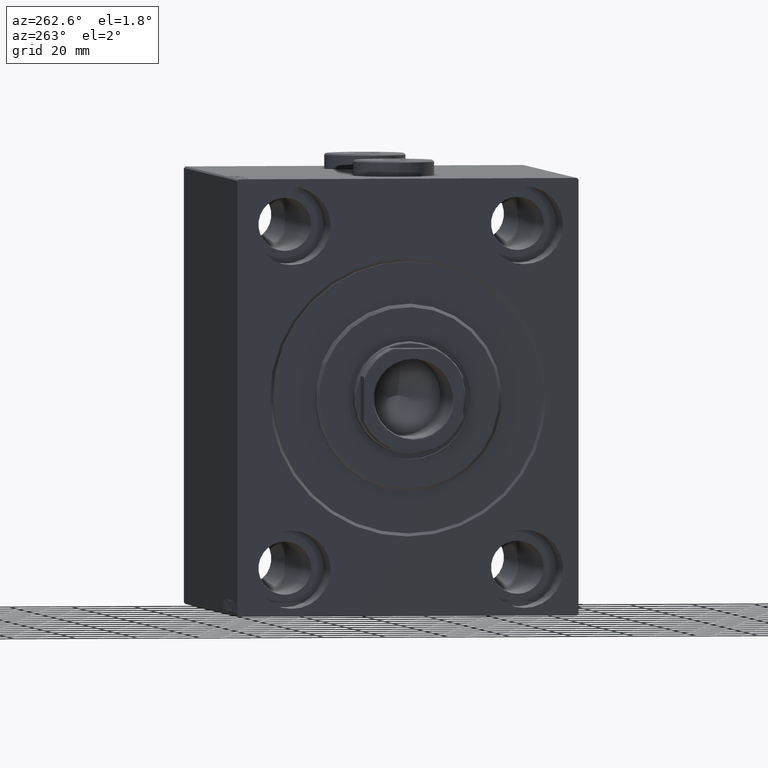
[diagram: clean part render]
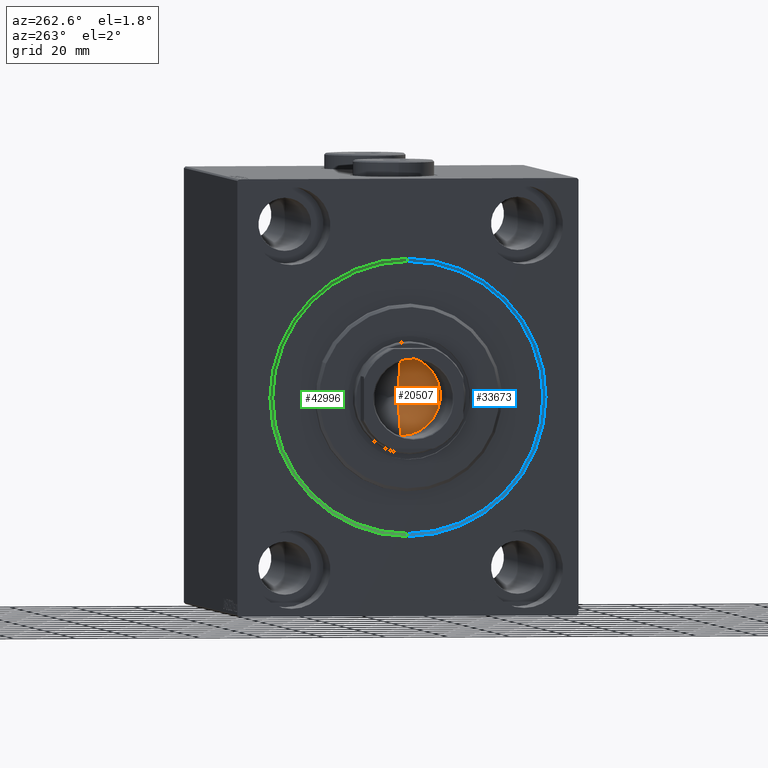
[diagram: same view with three faces highlighted in distinct colors, each labeled with its STEP entity id]
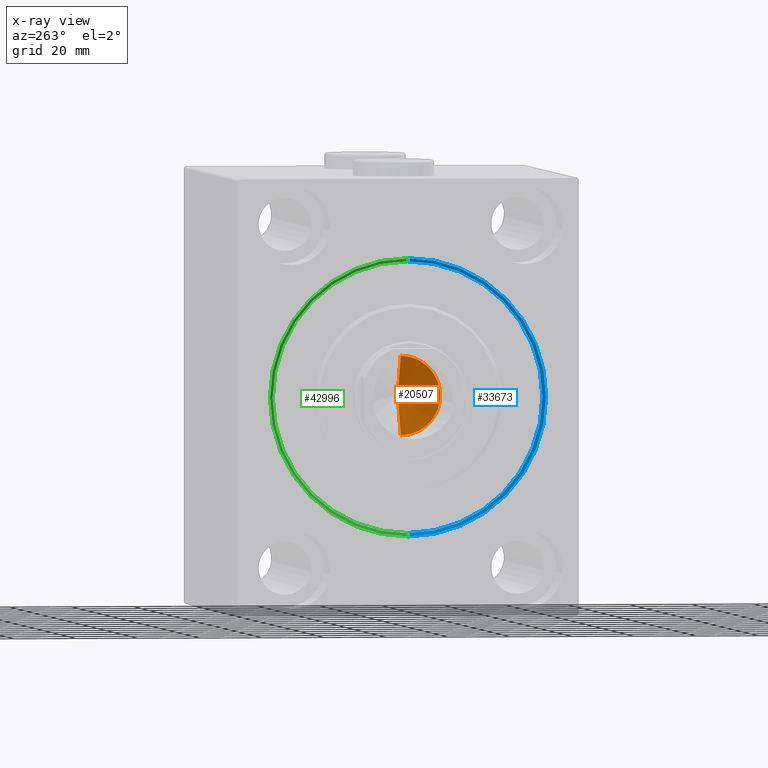
[diagram: x-ray of the same camera — body ghosted, the three highlighted faces saturated]
A machine part, auxiliary view with three faces highlighted in distinct colors.
The next image is the same camera in x-ray (body ghosted, the three faces saturated) — at least one of them is partly hidden behind the body in this view.
Their STEP definitions:

[orange] entity #20507 — the highlighted conical surface has half-angle 59 deg.
#972 = VERTEX_POINT ( 'NONE', #4394 ) ;
#4394 = CARTESIAN_POINT ( 'NONE',  ( -1.026246296720136938E-14, 0.000000000000000000, 86.33902710739860709 ) ) ;
#5382 = CARTESIAN_POINT ( 'NONE',  ( 0.000000000000000000, 0.000000000000000000, 94.00000000000000000 ) ) ;
#5783 = EDGE_CURVE ( 'NONE', #972, #37017, #37390, .T. ) ;
#5869 = FACE_OUTER_BOUND ( 'NONE', #33464, .T. ) ;
#6254 = ORIENTED_EDGE ( 'NONE', *, *, #11021, .F. ) ;
#10574 = CONICAL_SURFACE ( 'NONE', #14969, 12.74999999999999467, 1.029744258676653645 ) ;
#11021 = EDGE_CURVE ( 'NONE', #972, #33348, #31266, .T. ) ;
#12514 = DIRECTION ( 'NONE',  ( -0.000000000000000000, -0.000000000000000000, 1.000000000000000000 ) ) ;
#12724 = CARTESIAN_POINT ( 'NONE',  ( 12.74999999999999467, 0.000000000000000000, 94.00000000000000000 ) ) ;
#14514 = ORIENTED_EDGE ( 'NONE', *, *, #5783, .T. ) ;
#14969 = AXIS2_PLACEMENT_3D ( 'NONE', #40470, #12514, #33366 ) ;
#16769 = CARTESIAN_POINT ( 'NONE',  ( -12.74999999999999467, 1.561424668912874519E-15, 94.00000000000000000 ) ) ;
#18288 = DIRECTION ( 'NONE',  ( -0.000000000000000000, -0.000000000000000000, 1.000000000000000000 ) ) ;
#19755 = CIRCLE ( 'NONE', #35096, 12.74999999999999467 ) ;
#20507 = ADVANCED_FACE ( 'NONE', ( #5869 ), #10574, .F. ) ;
#24171 = CARTESIAN_POINT ( 'NONE',  ( 12.74999999999999467, 0.000000000000000000, 94.00000000000000000 ) ) ;
#24983 = VECTOR ( 'NONE', #38137, 1000.000000000000000 ) ;
#30492 = EDGE_CURVE ( 'NONE', #37017, #33348, #19755, .T. ) ;
#31266 = LINE ( 'NONE', #24171, #24983 ) ;
#33348 = VERTEX_POINT ( 'NONE', #12724 ) ;
#33366 = DIRECTION ( 'NONE',  ( 1.000000000000000000, 0.000000000000000000, 0.000000000000000000 ) ) ;
#33464 = EDGE_LOOP ( 'NONE', ( #6254, #14514, #35490 ) ) ;
#33960 = DIRECTION ( 'NONE',  ( -0.8571673007021118895, 1.049727191138618079E-16, 0.5150380749100549327 ) ) ;
#35096 = AXIS2_PLACEMENT_3D ( 'NONE', #5382, #18288, #42344 ) ;
#35490 = ORIENTED_EDGE ( 'NONE', *, *, #30492, .T. ) ;
#37017 = VERTEX_POINT ( 'NONE', #39412 ) ;
#37390 = LINE ( 'NONE', #16769, #42470 ) ;
#38137 = DIRECTION ( 'NONE',  ( 0.8571673007021118895, 0.000000000000000000, 0.5150380749100549327 ) ) ;
#39412 = CARTESIAN_POINT ( 'NONE',  ( -12.74999999999999467, 1.561424668912874519E-15, 94.00000000000000000 ) ) ;
#40470 = CARTESIAN_POINT ( 'NONE',  ( 0.000000000000000000, 0.000000000000000000, 94.00000000000000000 ) ) ;
#42344 = DIRECTION ( 'NONE',  ( 1.000000000000000000, 0.000000000000000000, 0.000000000000000000 ) ) ;
#42470 = VECTOR ( 'NONE', #33960, 1000.000000000000000 ) ;

[blue] entity #33673 — the highlighted conical surface has half-angle 45 deg.
#323 = VERTEX_POINT ( 'NONE', #36357 ) ;
#898 = DIRECTION ( 'NONE',  ( 0.000000000000000000, 0.000000000000000000, -1.000000000000000000 ) ) ;
#1408 = DIRECTION ( 'NONE',  ( 0.000000000000000000, 0.000000000000000000, -1.000000000000000000 ) ) ;
#1709 = LINE ( 'NONE', #43201, #36706 ) ;
#3160 = EDGE_CURVE ( 'NONE', #25015, #323, #30702, .T. ) ;
#7879 = ORIENTED_EDGE ( 'NONE', *, *, #12423, .T. ) ;
#8930 = CARTESIAN_POINT ( 'NONE',  ( 1.000000000000000888, 5.327213576290986044E-15, -43.50000000000000000 ) ) ;
#9868 = VERTEX_POINT ( 'NONE', #26535 ) ;
#11565 = EDGE_CURVE ( 'NONE', #27522, #9868, #21312, .T. ) ;
#11761 = AXIS2_PLACEMENT_3D ( 'NONE', #37524, #16231, #16897 ) ;
#11801 = DIRECTION ( 'NONE',  ( -0.7071067811865426878, 0.000000000000000000, 0.7071067811865524577 ) ) ;
#12170 = DIRECTION ( 'NONE',  ( -1.000000000000000000, 0.000000000000000000, 0.000000000000000000 ) ) ;
#12423 = EDGE_CURVE ( 'NONE', #27522, #323, #35445, .T. ) ;
#16064 = CARTESIAN_POINT ( 'NONE',  ( 1.000000000000000888, 0.000000000000000000, 0.000000000000000000 ) ) ;
#16231 = DIRECTION ( 'NONE',  ( -1.000000000000000000, 0.000000000000000000, 0.000000000000000000 ) ) ;
#16897 = DIRECTION ( 'NONE',  ( 0.000000000000000000, 0.000000000000000000, 1.000000000000000000 ) ) ;
#16950 = ORIENTED_EDGE ( 'NONE', *, *, #36835, .F. ) ;
#17569 = ORIENTED_EDGE ( 'NONE', *, *, #11565, .F. ) ;
#21312 = CIRCLE ( 'NONE', #24260, 43.50000000000000000 ) ;
#22675 = AXIS2_PLACEMENT_3D ( 'NONE', #32285, #28177, #898 ) ;
#24242 = CARTESIAN_POINT ( 'NONE',  ( 1.000000000000000888, 5.327213576290986044E-15, -43.50000000000000000 ) ) ;
#24260 = AXIS2_PLACEMENT_3D ( 'NONE', #16064, #12170, #1408 ) ;
#25015 = VERTEX_POINT ( 'NONE', #33329 ) ;
#26535 = CARTESIAN_POINT ( 'NONE',  ( 1.000000000000000888, 0.000000000000000000, 43.50000000000000000 ) ) ;
#27522 = VERTEX_POINT ( 'NONE', #8930 ) ;
#28057 = ORIENTED_EDGE ( 'NONE', *, *, #3160, .F. ) ;
#28177 = DIRECTION ( 'NONE',  ( 1.000000000000000000, 0.000000000000000000, 0.000000000000000000 ) ) ;
#29602 = EDGE_LOOP ( 'NONE', ( #17569, #7879, #28057, #16950 ) ) ;
#30702 = CIRCLE ( 'NONE', #22675, 44.50000000000001421 ) ;
#32012 = DIRECTION ( 'NONE',  ( -0.7071067811865426878, 8.659560562354994488E-17, -0.7071067811865524577 ) ) ;
#32285 = CARTESIAN_POINT ( 'NONE',  ( 0.000000000000000000, 0.000000000000000000, 0.000000000000000000 ) ) ;
#33329 = CARTESIAN_POINT ( 'NONE',  ( 0.000000000000000000, 0.000000000000000000, 44.50000000000001421 ) ) ;
#33673 = ADVANCED_FACE ( 'NONE', ( #34517 ), #34410, .F. ) ;
#34410 = CONICAL_SURFACE ( 'NONE', #11761, 43.50000000000000000, 0.7853981633974552734 ) ;
#34517 = FACE_OUTER_BOUND ( 'NONE', #29602, .T. ) ;
#35445 = LINE ( 'NONE', #24242, #35989 ) ;
#35989 = VECTOR ( 'NONE', #32012, 1000.000000000000000 ) ;
#36357 = CARTESIAN_POINT ( 'NONE',  ( 0.000000000000000000, 5.449678256205723559E-15, -44.50000000000001421 ) ) ;
#36706 = VECTOR ( 'NONE', #11801, 1000.000000000000000 ) ;
#36835 = EDGE_CURVE ( 'NONE', #9868, #25015, #1709, .T. ) ;
#37524 = CARTESIAN_POINT ( 'NONE',  ( 1.000000000000000888, 0.000000000000000000, 0.000000000000000000 ) ) ;
#43201 = CARTESIAN_POINT ( 'NONE',  ( 1.000000000000000888, 0.000000000000000000, 43.50000000000000000 ) ) ;

[green] entity #42996 — the highlighted conical surface has half-angle 45 deg.
#323 = VERTEX_POINT ( 'NONE', #36357 ) ;
#1245 = ORIENTED_EDGE ( 'NONE', *, *, #12423, .F. ) ;
#1709 = LINE ( 'NONE', #43201, #36706 ) ;
#2720 = EDGE_LOOP ( 'NONE', ( #1245, #42950, #24169, #2806 ) ) ;
#2806 = ORIENTED_EDGE ( 'NONE', *, *, #37510, .F. ) ;
#2808 = DIRECTION ( 'NONE',  ( -1.000000000000000000, 0.000000000000000000, 0.000000000000000000 ) ) ;
#3031 = DIRECTION ( 'NONE',  ( 0.000000000000000000, 0.000000000000000000, 1.000000000000000000 ) ) ;
#6714 = CIRCLE ( 'NONE', #16261, 44.50000000000001421 ) ;
#8930 = CARTESIAN_POINT ( 'NONE',  ( 1.000000000000000888, 5.327213576290986044E-15, -43.50000000000000000 ) ) ;
#9868 = VERTEX_POINT ( 'NONE', #26535 ) ;
#11801 = DIRECTION ( 'NONE',  ( -0.7071067811865426878, 0.000000000000000000, 0.7071067811865524577 ) ) ;
#12423 = EDGE_CURVE ( 'NONE', #27522, #323, #35445, .T. ) ;
#14971 = CONICAL_SURFACE ( 'NONE', #36163, 43.50000000000000000, 0.7853981633974552734 ) ;
#16261 = AXIS2_PLACEMENT_3D ( 'NONE', #29730, #30180, #19877 ) ;
#19877 = DIRECTION ( 'NONE',  ( 0.000000000000000000, 0.000000000000000000, -1.000000000000000000 ) ) ;
#20450 = FACE_OUTER_BOUND ( 'NONE', #2720, .T. ) ;
#24169 = ORIENTED_EDGE ( 'NONE', *, *, #36835, .T. ) ;
#24242 = CARTESIAN_POINT ( 'NONE',  ( 1.000000000000000888, 5.327213576290986044E-15, -43.50000000000000000 ) ) ;
#25015 = VERTEX_POINT ( 'NONE', #33329 ) ;
#26535 = CARTESIAN_POINT ( 'NONE',  ( 1.000000000000000888, 0.000000000000000000, 43.50000000000000000 ) ) ;
#27522 = VERTEX_POINT ( 'NONE', #8930 ) ;
#28117 = CIRCLE ( 'NONE', #41294, 43.50000000000000000 ) ;
#29730 = CARTESIAN_POINT ( 'NONE',  ( 0.000000000000000000, 0.000000000000000000, 0.000000000000000000 ) ) ;
#30180 = DIRECTION ( 'NONE',  ( 1.000000000000000000, 0.000000000000000000, 0.000000000000000000 ) ) ;
#30388 = DIRECTION ( 'NONE',  ( 0.000000000000000000, 0.000000000000000000, -1.000000000000000000 ) ) ;
#32012 = DIRECTION ( 'NONE',  ( -0.7071067811865426878, 8.659560562354994488E-17, -0.7071067811865524577 ) ) ;
#33329 = CARTESIAN_POINT ( 'NONE',  ( 0.000000000000000000, 0.000000000000000000, 44.50000000000001421 ) ) ;
#33979 = CARTESIAN_POINT ( 'NONE',  ( 1.000000000000000888, 0.000000000000000000, 0.000000000000000000 ) ) ;
#35445 = LINE ( 'NONE', #24242, #35989 ) ;
#35989 = VECTOR ( 'NONE', #32012, 1000.000000000000000 ) ;
#36163 = AXIS2_PLACEMENT_3D ( 'NONE', #33979, #2808, #3031 ) ;
#36357 = CARTESIAN_POINT ( 'NONE',  ( 0.000000000000000000, 5.449678256205723559E-15, -44.50000000000001421 ) ) ;
#36706 = VECTOR ( 'NONE', #11801, 1000.000000000000000 ) ;
#36835 = EDGE_CURVE ( 'NONE', #9868, #25015, #1709, .T. ) ;
#37510 = EDGE_CURVE ( 'NONE', #323, #25015, #6714, .T. ) ;
#40016 = DIRECTION ( 'NONE',  ( -1.000000000000000000, 0.000000000000000000, 0.000000000000000000 ) ) ;
#41294 = AXIS2_PLACEMENT_3D ( 'NONE', #43898, #40016, #30388 ) ;
#42950 = ORIENTED_EDGE ( 'NONE', *, *, #43854, .F. ) ;
#42996 = ADVANCED_FACE ( 'NONE', ( #20450 ), #14971, .F. ) ;
#43201 = CARTESIAN_POINT ( 'NONE',  ( 1.000000000000000888, 0.000000000000000000, 43.50000000000000000 ) ) ;
#43854 = EDGE_CURVE ( 'NONE', #9868, #27522, #28117, .T. ) ;
#43898 = CARTESIAN_POINT ( 'NONE',  ( 1.000000000000000888, 0.000000000000000000, 0.000000000000000000 ) ) ;